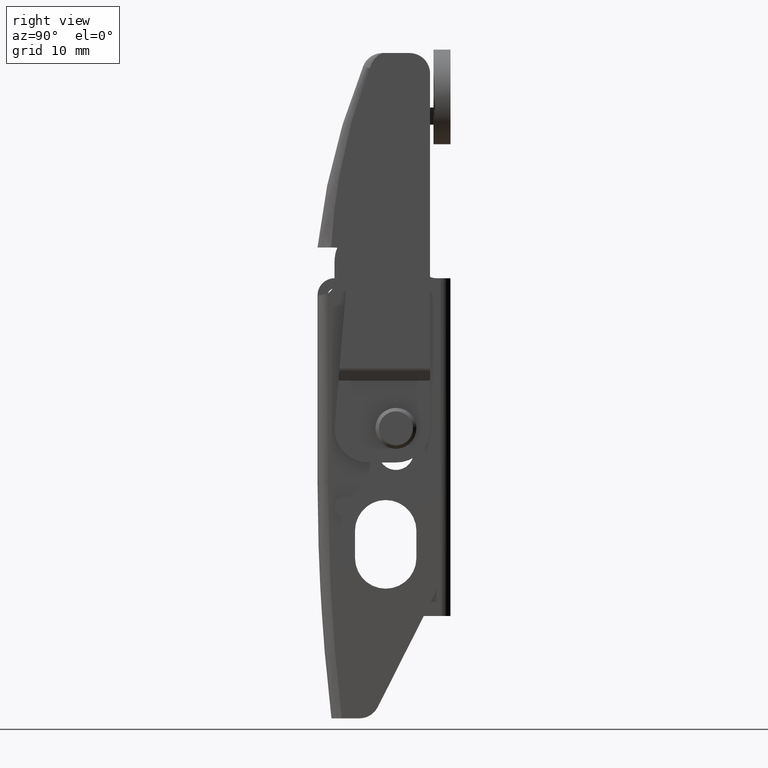
[diagram: clean part render]
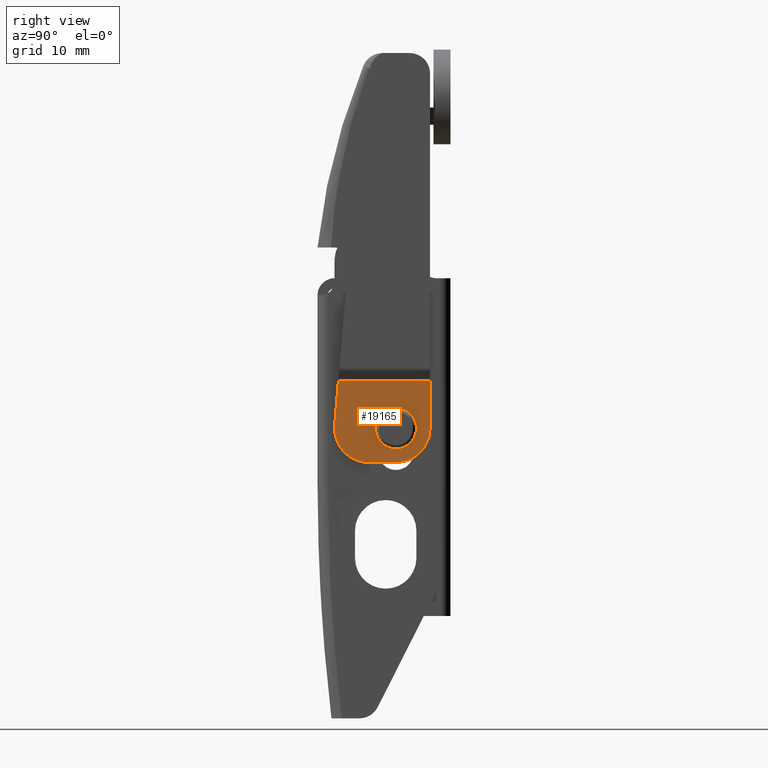
[diagram: same view with one face highlighted and labeled with its STEP entity id]
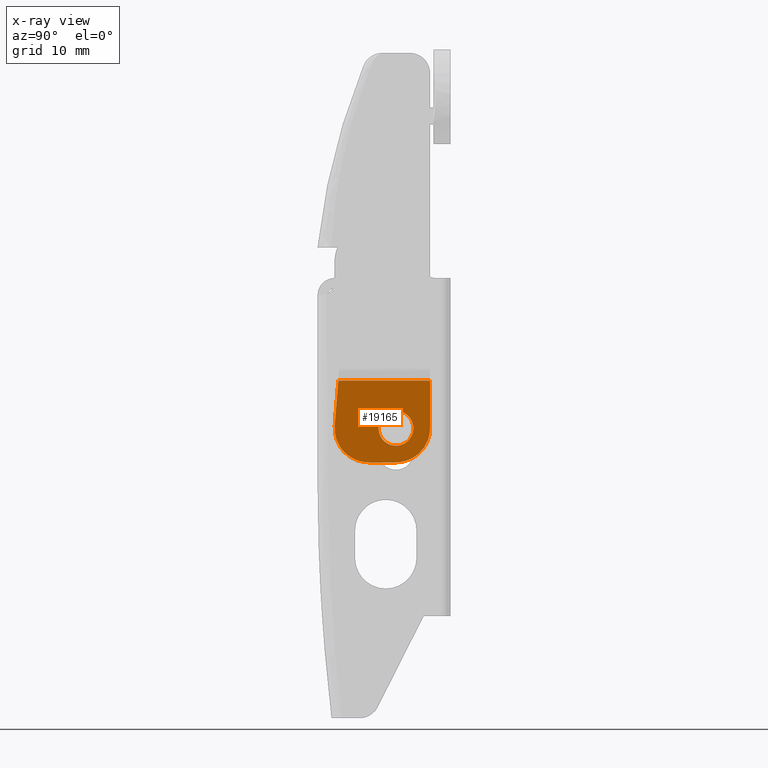
[diagram: x-ray of the same camera — body ghosted, the highlighted face saturated]
A machine part, right view. The second image highlights one B-rep face of the part: STEP entity #19165.
The next image is the same camera in x-ray: the body ghosted, the highlighted face saturated — about 0% of this face is hidden behind the body in this view.
In plain terms, the highlighted face is a freeform B-spline surface patch.
Its self-contained STEP definition (entity closure, byte-faithful):
#18009=CARTESIAN_POINT('',(18.200000000002550,-8.000000000000091,-2.950000000133610));
#18010=VERTEX_POINT('',#18009);
#18011=CARTESIAN_POINT('',(18.200000000002550,-10.542139200986780,-5.299929305610977));
#18012=VERTEX_POINT('',#18011);
#18013=CARTESIAN_POINT('',(18.200000000002550,-8.000000000000091,-2.950000000133610));
#18014=CARTESIAN_POINT('',(18.200000000002557,-10.357195753341008,-2.950000000133609));
#18015=CARTESIAN_POINT('',(18.200000000002550,-10.542139200986776,-5.299929305610979));
#18023=(BOUNDED_CURVE()B_SPLINE_CURVE(2,(#18013,#18014,#18015),.UNSPECIFIED.,.F.,.U.)B_SPLINE_CURVE_WITH_KNOTS((3,3),(0.0,0.236331300604672),.UNSPECIFIED.)CURVE()GEOMETRIC_REPRESENTATION_ITEM()RATIONAL_B_SPLINE_CURVE((1.0,0.723120658638112,0.969723356113184))REPRESENTATION_ITEM(''));
#18024=EDGE_CURVE('',#18010,#18012,#18023,.T.);
#18065=CARTESIAN_POINT('',(18.200000000002550,-5.457860799013403,-5.700070694656242));
#18066=VERTEX_POINT('',#18065);
#18072=CARTESIAN_POINT('',(18.200000000002550,-5.457860799013402,-5.700070694656244));
#18073=CARTESIAN_POINT('',(18.200000000002547,-5.450000000000090,-5.600189773212448));
#18074=CARTESIAN_POINT('',(18.200000000002550,-5.450000000000090,-5.500000000133610));
#18075=CARTESIAN_POINT('',(18.200000000002550,-5.450000000000090,-2.950000000133610));
#18076=CARTESIAN_POINT('',(18.200000000002550,-8.000000000000091,-2.950000000133610));
#18084=(BOUNDED_CURVE()B_SPLINE_CURVE(2,(#18072,#18073,#18074,#18075,#18076),.UNSPECIFIED.,.F.,.U.)B_SPLINE_CURVE_WITH_KNOTS((3,2,3),(0.736331300604672,0.750000000000000,1.0),.UNSPECIFIED.)CURVE()GEOMETRIC_REPRESENTATION_ITEM()RATIONAL_B_SPLINE_CURVE((0.969723356113184,0.983986122548436,1.0,0.707106781186548,1.0))REPRESENTATION_ITEM(''));
#18085=EDGE_CURVE('',#18066,#18010,#18084,.T.);
#18108=CARTESIAN_POINT('',(18.200000000002550,-8.000000000000091,-8.050000000133609));
#18109=VERTEX_POINT('',#18108);
#18110=CARTESIAN_POINT('',(18.200000000002550,-10.542139200986774,-5.299929305610976));
#18111=CARTESIAN_POINT('',(18.200000000002547,-10.550000000000091,-5.399810227054771));
#18112=CARTESIAN_POINT('',(18.200000000002550,-10.550000000000090,-5.500000000133610));
#18113=CARTESIAN_POINT('',(18.200000000002550,-10.550000000000091,-8.050000000133609));
#18114=CARTESIAN_POINT('',(18.200000000002550,-8.000000000000091,-8.050000000133609));
#18122=(BOUNDED_CURVE()B_SPLINE_CURVE(2,(#18110,#18111,#18112,#18113,#18114),.UNSPECIFIED.,.F.,.U.)B_SPLINE_CURVE_WITH_KNOTS((3,2,3),(0.236331300604672,0.250000000000000,0.500000000000000),.UNSPECIFIED.)CURVE()GEOMETRIC_REPRESENTATION_ITEM()RATIONAL_B_SPLINE_CURVE((0.969723356113184,0.983986122548436,1.0,0.707106781186548,1.0))REPRESENTATION_ITEM(''));
#18123=EDGE_CURVE('',#18012,#18109,#18122,.T.);
#18125=CARTESIAN_POINT('',(18.200000000002550,-8.000000000000091,-8.050000000133609));
#18126=CARTESIAN_POINT('',(18.200000000002557,-5.642804246659176,-8.050000000133611));
#18127=CARTESIAN_POINT('',(18.200000000002550,-5.457860799013402,-5.700070694656244));
#18135=(BOUNDED_CURVE()B_SPLINE_CURVE(2,(#18125,#18126,#18127),.UNSPECIFIED.,.F.,.U.)B_SPLINE_CURVE_WITH_KNOTS((3,3),(0.500000000000000,0.736331300604672),.UNSPECIFIED.)CURVE()GEOMETRIC_REPRESENTATION_ITEM()RATIONAL_B_SPLINE_CURVE((1.0,0.723120658638112,0.969723356113184))REPRESENTATION_ITEM(''));
#18136=EDGE_CURVE('',#18109,#18066,#18135,.T.);
#18187=CARTESIAN_POINT('',(18.200000000011901,-8.000000000000091,-10.500000000151999));
#18188=VERTEX_POINT('',#18187);
#18189=CARTESIAN_POINT('',(18.200000000008000,-3.000000000000115,-5.500000000133610));
#18190=VERTEX_POINT('',#18189);
#18191=CARTESIAN_POINT('',(18.200000000011901,-8.000000000000091,-10.500000000151999));
#18192=CARTESIAN_POINT('',(18.200000000011929,-3.000000000000089,-10.500000000133610));
#18193=CARTESIAN_POINT('',(18.200000000008000,-3.000000000000090,-5.500000000133610));
#18201=(BOUNDED_CURVE()B_SPLINE_CURVE(2,(#18191,#18192,#18193),.UNSPECIFIED.,.F.,.U.)CURVE()GEOMETRIC_REPRESENTATION_ITEM()QUASI_UNIFORM_CURVE()RATIONAL_B_SPLINE_CURVE((1.0,0.707106781186548,1.0))REPRESENTATION_ITEM(''));
#18202=EDGE_CURVE('',#18188,#18190,#18201,.T.);
#18239=CARTESIAN_POINT('',(18.200000000011901,-12.0,-10.500000000151999));
#18240=VERTEX_POINT('',#18239);
#18241=CARTESIAN_POINT('',(18.200000000011901,-8.000000000000091,-10.500000000151999));
#18242=CARTESIAN_POINT('',(18.200000000011901,-12.0,-10.500000000151999));
#18243=QUASI_UNIFORM_CURVE('',1,(#18241,#18242),.UNSPECIFIED.,.F.,.U.);
#18244=EDGE_CURVE('',#18188,#18240,#18243,.T.);
#18482=CARTESIAN_POINT('',(18.200000000002500,-3.000000000000115,1.499999999848682));
#18483=VERTEX_POINT('',#18482);
#18489=CARTESIAN_POINT('',(18.200000000002500,-3.000000000000115,1.499999999848682));
#18490=CARTESIAN_POINT('',(18.200000000008000,-3.000000000000115,-5.500000000133610));
#18491=QUASI_UNIFORM_CURVE('',1,(#18489,#18490),.UNSPECIFIED.,.F.,.U.);
#18492=EDGE_CURVE('',#18483,#18190,#18491,.T.);
#19121=CARTESIAN_POINT('',(18.200000000012380,-17.697341901958531,-11.099399976893711));
#19122=CARTESIAN_POINT('',(18.200000000002039,-17.697341901958531,2.099400298455477));
#19123=CARTESIAN_POINT('',(18.200000000012380,-2.300792804291697,-11.099399976893711));
#19124=CARTESIAN_POINT('',(18.200000000002039,-2.300792804291697,2.099400298455477));
#19125=B_SPLINE_SURFACE_WITH_KNOTS('',1,1,((#19121,#19123),(#19122,#19124)),.UNSPECIFIED.,.F.,.F.,.U.,(2,2),(2,2),(0.0,13.198800275349191),(0.0,15.396549097666840),.UNSPECIFIED.);
#19126=ORIENTED_EDGE('',*,*,#18202,.T.);
#19127=ORIENTED_EDGE('',*,*,#18492,.F.);
#19128=CARTESIAN_POINT('',(18.200000000002550,-16.438789607205852,1.499999999848688));
#19129=VERTEX_POINT('',#19128);
#19130=CARTESIAN_POINT('',(18.200000000002500,-3.000000000000115,1.499999999848682));
#19131=CARTESIAN_POINT('',(18.200000000002550,-16.438789607205852,1.499999999848688));
#19132=QUASI_UNIFORM_CURVE('',1,(#19130,#19131),.UNSPECIFIED.,.F.,.U.);
#19133=EDGE_CURVE('',#18483,#19129,#19132,.T.);
#19134=ORIENTED_EDGE('',*,*,#19133,.T.);
#19135=CARTESIAN_POINT('',(18.200000000004099,-16.983027511585149,-5.088372961682010));
#19136=VERTEX_POINT('',#19135);
#19137=CARTESIAN_POINT('',(18.200000000002550,-16.438789607205852,1.499999999848688));
#19138=CARTESIAN_POINT('',(18.200000000004099,-16.983027511585149,-5.088372961682010));
#19139=QUASI_UNIFORM_CURVE('',1,(#19137,#19138),.UNSPECIFIED.,.F.,.U.);
#19140=EDGE_CURVE('',#19129,#19136,#19139,.T.);
#19141=ORIENTED_EDGE('',*,*,#19140,.T.);
#19142=CARTESIAN_POINT('',(18.200000000004099,-16.983027511585149,-5.088372961682010));
#19143=CARTESIAN_POINT('',(18.200000000005389,-17.027665420381929,-5.624716335948365));
#19144=CARTESIAN_POINT('',(18.200000000007350,-16.956525187142020,-6.515960426506374));
#19145=CARTESIAN_POINT('',(18.200000000009190,-16.562529280391839,-7.616192964002295));
#19146=CARTESIAN_POINT('',(18.200000000010341,-16.037413290485649,-8.510316779796911));
#19147=CARTESIAN_POINT('',(18.200000000010949,-15.424748171063490,-9.184374509774253));
#19148=CARTESIAN_POINT('',(18.200000000011361,-14.649475401114850,-9.768544440165853));
#19149=CARTESIAN_POINT('',(18.200000000011649,-13.861589072680770,-10.176645356877190));
#19150=CARTESIAN_POINT('',(18.200000000012029,-12.925622084978110,-10.443404512403671));
#19151=CARTESIAN_POINT('',(18.200000000011549,-12.301366569871901,-10.500025711033530));
#19152=CARTESIAN_POINT('',(18.200000000011901,-12.0,-10.500000000151999));
#19153=B_SPLINE_CURVE_WITH_KNOTS('',3,(#19142,#19143,#19144,#19145,#19146,#19147,#19148,#19149,#19150,#19151,#19152),.UNSPECIFIED.,.F.,.U.,(4,1,1,1,1,1,1,1,4),(0.000000121547700,1.614469515639007,2.647756038331205,3.487291143900656,4.714247903519832,5.360052164406350,6.393340959892470,7.362027737880451,8.266132512753146),.UNSPECIFIED.);
#19154=EDGE_CURVE('',#19136,#18240,#19153,.T.);
#19155=ORIENTED_EDGE('',*,*,#19154,.T.);
#19156=ORIENTED_EDGE('',*,*,#18244,.F.);
#19157=EDGE_LOOP('',(#19126,#19127,#19134,#19141,#19155,#19156));
#19158=FACE_OUTER_BOUND('',#19157,.T.);
#19159=ORIENTED_EDGE('',*,*,#18136,.F.);
#19160=ORIENTED_EDGE('',*,*,#18123,.F.);
#19161=ORIENTED_EDGE('',*,*,#18024,.F.);
#19162=ORIENTED_EDGE('',*,*,#18085,.F.);
#19163=EDGE_LOOP('',(#19159,#19160,#19161,#19162));
#19164=FACE_BOUND('',#19163,.T.);
#19165=ADVANCED_FACE('',(#19158,#19164),#19125,.F.);